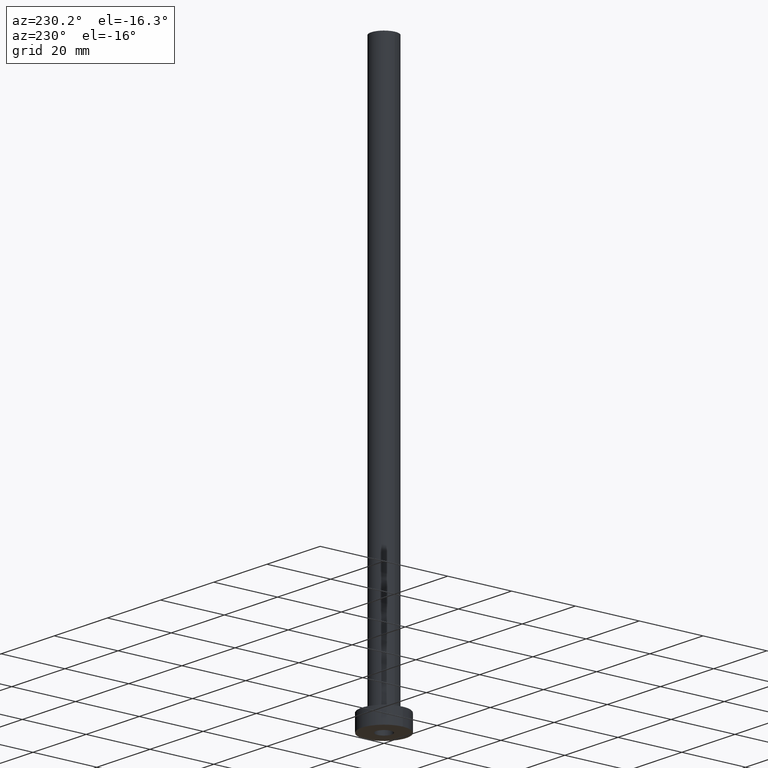
[diagram: clean part render]
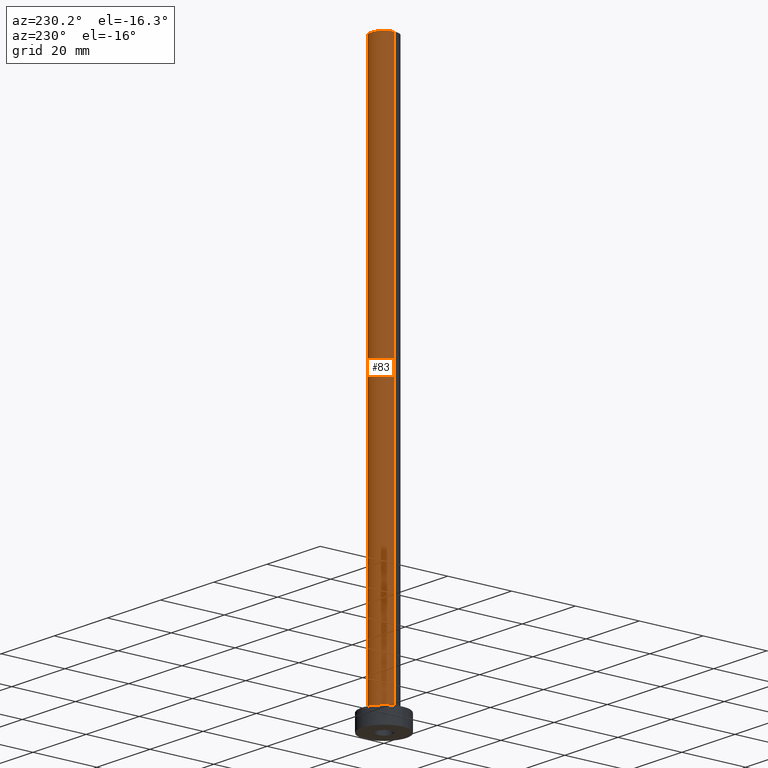
[diagram: same view with one face highlighted and labeled with its STEP entity id]
A machine part, auxiliary view. The second image highlights one B-rep face of the part: STEP entity #83.
In plain terms, the highlighted cylindrical surface (edge-blend (fillet) strip) has radius 4 mm, axis along (-0, -0, -1).
Its self-contained STEP definition (entity closure, byte-faithful):
#2 = CYLINDRICAL_SURFACE ( 'NONE', #15, 4.000000000000000000 ) ;
#15 = AXIS2_PLACEMENT_3D ( 'NONE', #280, #176, #100 ) ;
#28 = VECTOR ( 'NONE', #291, 1000.000000000000000 ) ;
#48 = CARTESIAN_POINT ( 'NONE',  ( -4.000000000000000000, 0.000000000000000000, 175.0000000000000284 ) ) ;
#50 = ORIENTED_EDGE ( 'NONE', *, *, #437, .T. ) ;
#83 = ADVANCED_FACE ( 'NONE', ( #418 ), #2, .T. ) ;
#91 = AXIS2_PLACEMENT_3D ( 'NONE', #247, #375, #408 ) ;
#100 = DIRECTION ( 'NONE',  ( -1.000000000000000000, 0.000000000000000000, 0.000000000000000000 ) ) ;
#101 = VERTEX_POINT ( 'NONE', #245 ) ;
#119 = LINE ( 'NONE', #442, #28 ) ;
#130 = ORIENTED_EDGE ( 'NONE', *, *, #154, .T. ) ;
#138 = CARTESIAN_POINT ( 'NONE',  ( 0.000000000000000000, 0.000000000000000000, 5.500000000000005329 ) ) ;
#139 = VERTEX_POINT ( 'NONE', #358 ) ;
#154 = EDGE_CURVE ( 'NONE', #184, #139, #265, .T. ) ;
#168 = CARTESIAN_POINT ( 'NONE',  ( 4.000000000000000000, 4.898587196589412829E-16, 175.0000000000000284 ) ) ;
#169 = EDGE_LOOP ( 'NONE', ( #407, #50, #130, #340 ) ) ;
#176 = DIRECTION ( 'NONE',  ( -0.000000000000000000, -0.000000000000000000, -1.000000000000000000 ) ) ;
#184 = VERTEX_POINT ( 'NONE', #320 ) ;
#245 = CARTESIAN_POINT ( 'NONE',  ( -4.000000000000000000, 0.000000000000000000, 175.0000000000000284 ) ) ;
#247 = CARTESIAN_POINT ( 'NONE',  ( 0.000000000000000000, 0.000000000000000000, 175.0000000000000284 ) ) ;
#257 = EDGE_CURVE ( 'NONE', #359, #101, #461, .T. ) ;
#265 = CIRCLE ( 'NONE', #425, 4.000000000000000000 ) ;
#277 = DIRECTION ( 'NONE',  ( 1.000000000000000000, 0.000000000000000000, 0.000000000000000000 ) ) ;
#280 = CARTESIAN_POINT ( 'NONE',  ( 0.000000000000000000, 0.000000000000000000, 175.0000000000000284 ) ) ;
#291 = DIRECTION ( 'NONE',  ( -0.000000000000000000, -0.000000000000000000, -1.000000000000000000 ) ) ;
#320 = CARTESIAN_POINT ( 'NONE',  ( 4.000000000000000000, 4.898587196589412829E-16, 5.500000000000005329 ) ) ;
#324 = DIRECTION ( 'NONE',  ( 0.000000000000000000, 0.000000000000000000, 1.000000000000000000 ) ) ;
#333 = DIRECTION ( 'NONE',  ( -0.000000000000000000, -0.000000000000000000, -1.000000000000000000 ) ) ;
#340 = ORIENTED_EDGE ( 'NONE', *, *, #374, .F. ) ;
#358 = CARTESIAN_POINT ( 'NONE',  ( -4.000000000000000000, 0.000000000000000000, 5.500000000000005329 ) ) ;
#359 = VERTEX_POINT ( 'NONE', #168 ) ;
#371 = VECTOR ( 'NONE', #333, 1000.000000000000000 ) ;
#374 = EDGE_CURVE ( 'NONE', #101, #139, #398, .T. ) ;
#375 = DIRECTION ( 'NONE',  ( 0.000000000000000000, 0.000000000000000000, 1.000000000000000000 ) ) ;
#398 = LINE ( 'NONE', #48, #371 ) ;
#407 = ORIENTED_EDGE ( 'NONE', *, *, #257, .F. ) ;
#408 = DIRECTION ( 'NONE',  ( 1.000000000000000000, 0.000000000000000000, 0.000000000000000000 ) ) ;
#418 = FACE_OUTER_BOUND ( 'NONE', #169, .T. ) ;
#425 = AXIS2_PLACEMENT_3D ( 'NONE', #138, #324, #277 ) ;
#437 = EDGE_CURVE ( 'NONE', #359, #184, #119, .T. ) ;
#442 = CARTESIAN_POINT ( 'NONE',  ( 4.000000000000000000, 4.898587196589412829E-16, 175.0000000000000284 ) ) ;
#461 = CIRCLE ( 'NONE', #91, 4.000000000000000000 ) ;